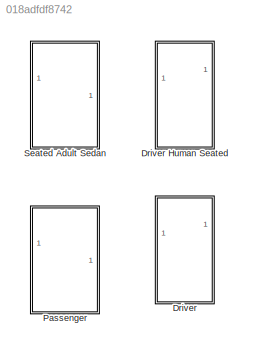
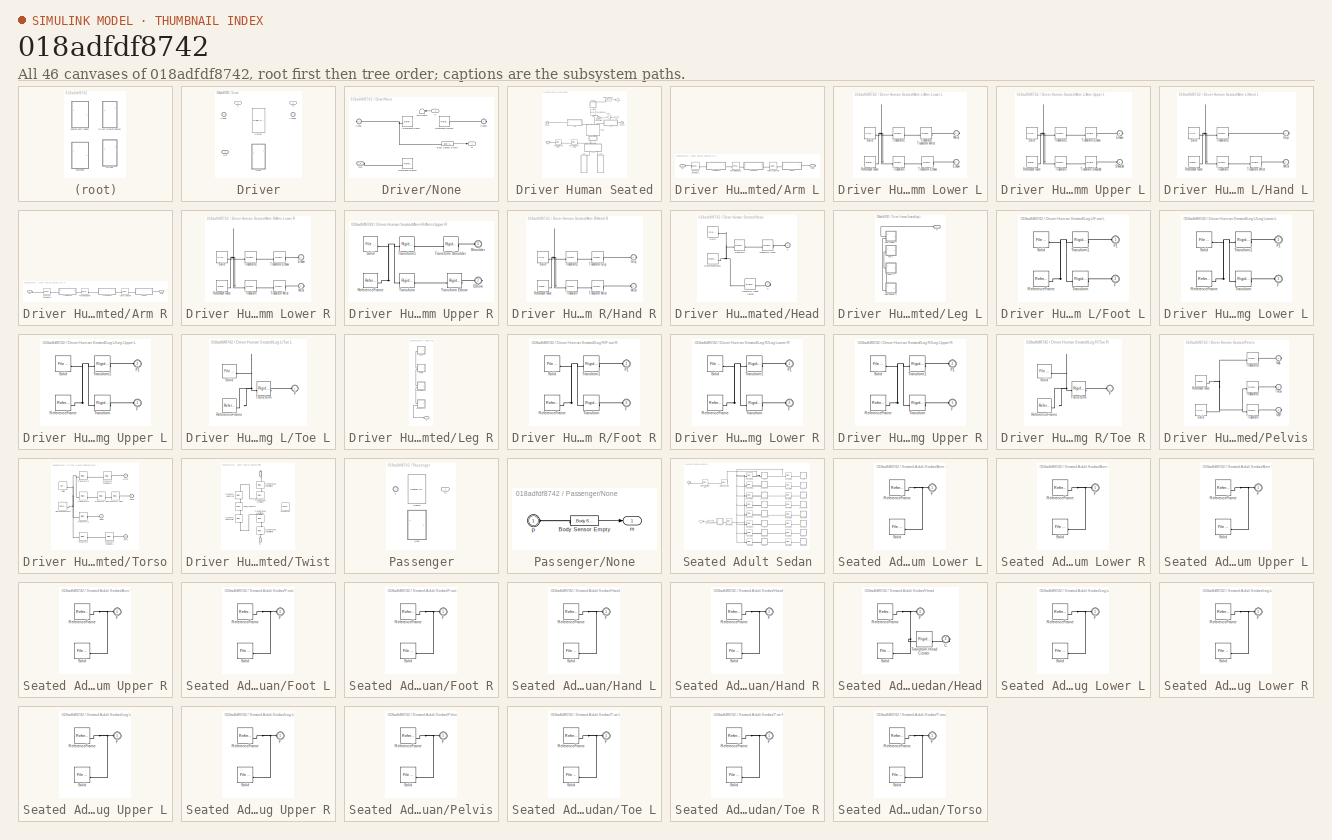
[diagram: thumbnail index - all 46 canvases of the model, root first then tree order]
MODEL slx_018adfdf8742
KIND library
CONFIG AbsTol = auto
CONFIG EnableMultiTasking = off
CONFIG FixedStep = auto
CONFIG MaxStep = auto
CONFIG MinStep = auto
CONFIG RelTol = 1e-3
CONFIG SampleTimeConstraint = Unconstrained
CONFIG SolverName = VariableStepAuto
CONFIG StartTime = 0.0
CONFIG StopTime = 25
BLOCK [SubSystem] Driver
  AttributesFormatString = %<LabelModeActiveChoice>
  Variant = on
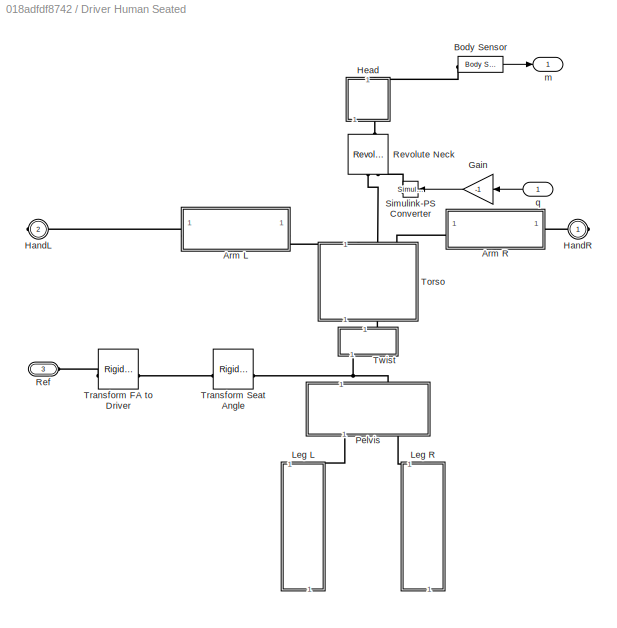
BLOCK [SubSystem] Driver Human Seated
  VariantControl = Human
BLOCK [SubSystem] Driver Human Seated/Arm L
BLOCK [SubSystem] Driver Human Seated/Arm L/Arm Lower L
BLOCK [PMIOPort] Driver Human Seated/Arm L/Arm Lower L/Elbow
  Side = Left
BLOCK [Reference] Driver Human Seated/Arm L/Arm Lower L/ReferenceFrame  REF=sm_lib/Frames and
Transforms/Reference
Frame
  SourceBlock = sm_lib/Frames and\nTransforms/Reference\nFrame
  SourceType = Reference\nFrame
BLOCK [Reference] Driver Human Seated/Arm L/Arm Lower L/Solid  REF=sm_lib/Body Elements/File Solid
  SourceBlock = sm_lib/Body Elements/File Solid
  SourceType = File Solid
BLOCK [Reference] Driver Human Seated/Arm L/Arm Lower L/Transform  REF=sm_lib/Frames and
Transforms/Rigid
Transform
  SourceBlock = sm_lib/Frames and\nTransforms/Rigid\nTransform
  SourceType = Rigid\nTransform
BLOCK [Reference] Driver Human Seated/Arm L/Arm Lower L/Transform Elbow  REF=sm_lib/Frames and
Transforms/Rigid
Transform
  SourceBlock = sm_lib/Frames and\nTransforms/Rigid\nTransform
  SourceType = Rigid\nTransform
BLOCK [Reference] Driver Human Seated/Arm L/Arm Lower L/Transform Transform Wrist  REF=sm_lib/Frames and
Transforms/Rigid
Transform
  SourceBlock = sm_lib/Frames and\nTransforms/Rigid\nTransform
  SourceType = Rigid\nTransform
BLOCK [Reference] Driver Human Seated/Arm L/Arm Lower L/Transform1  REF=sm_lib/Frames and
Transforms/Rigid
Transform
  SourceBlock = sm_lib/Frames and\nTransforms/Rigid\nTransform
  SourceType = Rigid\nTransform
BLOCK [PMIOPort] Driver Human Seated/Arm L/Arm Lower L/Wrist
  Port = 2
  Side = Right
BLOCK [SubSystem] Driver Human Seated/Arm L/Arm Upper L
BLOCK [PMIOPort] Driver Human Seated/Arm L/Arm Upper L/Elbow
  Port = 2
  Side = Right
BLOCK [Reference] Driver Human Seated/Arm L/Arm Upper L/ReferenceFrame  REF=sm_lib/Frames and
Transforms/Reference
Frame
  SourceBlock = sm_lib/Frames and\nTransforms/Reference\nFrame
  SourceType = Reference\nFrame
BLOCK [PMIOPort] Driver Human Seated/Arm L/Arm Upper L/Shoulder
  Side = Left
BLOCK [Reference] Driver Human Seated/Arm L/Arm Upper L/Solid  REF=sm_lib/Body Elements/File Solid
  SourceBlock = sm_lib/Body Elements/File Solid
  SourceType = File Solid
BLOCK [Reference] Driver Human Seated/Arm L/Arm Upper L/Transform  REF=sm_lib/Frames and
Transforms/Rigid
Transform
  SourceBlock = sm_lib/Frames and\nTransforms/Rigid\nTransform
  SourceType = Rigid\nTransform
BLOCK [Reference] Driver Human Seated/Arm L/Arm Upper L/Transform Elbow  REF=sm_lib/Frames and
Transforms/Rigid
Transform
  SourceBlock = sm_lib/Frames and\nTransforms/Rigid\nTransform
  SourceType = Rigid\nTransform
BLOCK [Reference] Driver Human Seated/Arm L/Arm Upper L/Transform Shoulder  REF=sm_lib/Frames and
Transforms/Rigid
Transform
  SourceBlock = sm_lib/Frames and\nTransforms/Rigid\nTransform
  SourceType = Rigid\nTransform
BLOCK [Reference] Driver Human Seated/Arm L/Arm Upper L/Transform1  REF=sm_lib/Frames and
Transforms/Rigid
Transform
  SourceBlock = sm_lib/Frames and\nTransforms/Rigid\nTransform
  SourceType = Rigid\nTransform
BLOCK [PMIOPort] Driver Human Seated/Arm L/Grip
  Port = 2
  Side = Right
BLOCK [SubSystem] Driver Human Seated/Arm L/Hand L
BLOCK [PMIOPort] Driver Human Seated/Arm L/Hand L/Grip
  Side = Right
BLOCK [Reference] Driver Human Seated/Arm L/Hand L/ReferenceFrame  REF=sm_lib/Frames and
Transforms/Reference
Frame
  SourceBlock = sm_lib/Frames and\nTransforms/Reference\nFrame
  SourceType = Reference\nFrame
BLOCK [Reference] Driver Human Seated/Arm L/Hand L/Solid  REF=sm_lib/Body Elements/File Solid
  SourceBlock = sm_lib/Body Elements/File Solid
  SourceType = File Solid
BLOCK [Reference] Driver Human Seated/Arm L/Hand L/Transform  REF=sm_lib/Frames and
Transforms/Rigid
Transform
  SourceBlock = sm_lib/Frames and\nTransforms/Rigid\nTransform
  SourceType = Rigid\nTransform
BLOCK [Reference] Driver Human Seated/Arm L/Hand L/Transform Wrist  REF=sm_lib/Frames and
Transforms/Rigid
Transform
  SourceBlock = sm_lib/Frames and\nTransforms/Rigid\nTransform
  SourceType = Rigid\nTransform
BLOCK [Reference] Driver Human Seated/Arm L/Hand L/Transform1  REF=sm_lib/Frames and
Transforms/Rigid
Transform
  SourceBlock = sm_lib/Frames and\nTransforms/Rigid\nTransform
  SourceType = Rigid\nTransform
BLOCK [PMIOPort] Driver Human Seated/Arm L/Hand L/Wrist
  Port = 2
  Side = Left
BLOCK [Reference] Driver Human Seated/Arm L/Revolute ElbowL  REF=sm_lib/Joints/Revolute Joint
  SourceBlock = sm_lib/Joints/Revolute Joint
  SourceType = Revolute Joint
BLOCK [PMIOPort] Driver Human Seated/Arm L/Sh
  Side = Left
BLOCK [Reference] Driver Human Seated/Arm L/Spherical ShoulderL  REF=sm_lib/Joints/Spherical
Joint
  SourceBlock = sm_lib/Joints/Spherical\nJoint
  SourceType = Spherical\nJoint
BLOCK [Reference] Driver Human Seated/Arm L/Universal WristL  REF=sm_lib/Joints/Universal
Joint
  SourceBlock = sm_lib/Joints/Universal\nJoint
  SourceType = Universal\nJoint
BLOCK [SubSystem] Driver Human Seated/Arm R
BLOCK [SubSystem] Driver Human Seated/Arm R/Arm Lower R
BLOCK [PMIOPort] Driver Human Seated/Arm R/Arm Lower R/Elbow
  Side = Left
BLOCK [Reference] Driver Human Seated/Arm R/Arm Lower R/ReferenceFrame  REF=sm_lib/Frames and
Transforms/Reference
Frame
  SourceBlock = sm_lib/Frames and\nTransforms/Reference\nFrame
  SourceType = Reference\nFrame
BLOCK [Reference] Driver Human Seated/Arm R/Arm Lower R/Solid  REF=sm_lib/Body Elements/File Solid
  SourceBlock = sm_lib/Body Elements/File Solid
  SourceType = File Solid
BLOCK [Reference] Driver Human Seated/Arm R/Arm Lower R/Transform  REF=sm_lib/Frames and
Transforms/Rigid
Transform
  SourceBlock = sm_lib/Frames and\nTransforms/Rigid\nTransform
  SourceType = Rigid\nTransform
BLOCK [Reference] Driver Human Seated/Arm R/Arm Lower R/Transform Elbow  REF=sm_lib/Frames and
Transforms/Rigid
Transform
  SourceBlock = sm_lib/Frames and\nTransforms/Rigid\nTransform
  SourceType = Rigid\nTransform
BLOCK [Reference] Driver Human Seated/Arm R/Arm Lower R/Transform Wrist  REF=sm_lib/Frames and
Transforms/Rigid
Transform
  SourceBlock = sm_lib/Frames and\nTransforms/Rigid\nTransform
  SourceType = Rigid\nTransform
BLOCK [Reference] Driver Human Seated/Arm R/Arm Lower R/Transform1  REF=sm_lib/Frames and
Transforms/Rigid
Transform
  SourceBlock = sm_lib/Frames and\nTransforms/Rigid\nTransform
  SourceType = Rigid\nTransform
BLOCK [PMIOPort] Driver Human Seated/Arm R/Arm Lower R/Wrist
  Port = 2
  Side = Right
BLOCK [SubSystem] Driver Human Seated/Arm R/Arm Upper R
BLOCK [PMIOPort] Driver Human Seated/Arm R/Arm Upper R/Elbow
  Port = 2
  Side = Right
BLOCK [Reference] Driver Human Seated/Arm R/Arm Upper R/ReferenceFrame  REF=sm_lib/Frames and
Transforms/Reference
Frame
  SourceBlock = sm_lib/Frames and\nTransforms/Reference\nFrame
  SourceType = Reference\nFrame
BLOCK [PMIOPort] Driver Human Seated/Arm R/Arm Upper R/Shoulder
  Side = Left
BLOCK [Reference] Driver Human Seated/Arm R/Arm Upper R/Solid  REF=sm_lib/Body Elements/File Solid
  SourceBlock = sm_lib/Body Elements/File Solid
  SourceType = File Solid
BLOCK [Reference] Driver Human Seated/Arm R/Arm Upper R/Transform  REF=sm_lib/Frames and
Transforms/Rigid
Transform
  SourceBlock = sm_lib/Frames and\nTransforms/Rigid\nTransform
  SourceType = Rigid\nTransform
BLOCK [Reference] Driver Human Seated/Arm R/Arm Upper R/Transform Elbow  REF=sm_lib/Frames and
Transforms/Rigid
Transform
  SourceBlock = sm_lib/Frames and\nTransforms/Rigid\nTransform
  SourceType = Rigid\nTransform
BLOCK [Reference] Driver Human Seated/Arm R/Arm Upper R/Transform Shoulder  REF=sm_lib/Frames and
Transforms/Rigid
Transform
  SourceBlock = sm_lib/Frames and\nTransforms/Rigid\nTransform
  SourceType = Rigid\nTransform
BLOCK [Reference] Driver Human Seated/Arm R/Arm Upper R/Transform1  REF=sm_lib/Frames and
Transforms/Rigid
Transform
  SourceBlock = sm_lib/Frames and\nTransforms/Rigid\nTransform
  SourceType = Rigid\nTransform
BLOCK [PMIOPort] Driver Human Seated/Arm R/Grip
  Side = Right
BLOCK [SubSystem] Driver Human Seated/Arm R/Hand R
BLOCK [PMIOPort] Driver Human Seated/Arm R/Hand R/Grip
  Side = Right
BLOCK [Reference] Driver Human Seated/Arm R/Hand R/ReferenceFrame  REF=sm_lib/Frames and
Transforms/Reference
Frame
  SourceBlock = sm_lib/Frames and\nTransforms/Reference\nFrame
  SourceType = Reference\nFrame
BLOCK [Reference] Driver Human Seated/Arm R/Hand R/Solid  REF=sm_lib/Body Elements/File Solid
  SourceBlock = sm_lib/Body Elements/File Solid
  SourceType = File Solid
BLOCK [Reference] Driver Human Seated/Arm R/Hand R/Transform  REF=sm_lib/Frames and
Transforms/Rigid
Transform
  SourceBlock = sm_lib/Frames and\nTransforms/Rigid\nTransform
  SourceType = Rigid\nTransform
BLOCK [Reference] Driver Human Seated/Arm R/Hand R/Transform Grip  REF=sm_lib/Frames and
Transforms/Rigid
Transform
  SourceBlock = sm_lib/Frames and\nTransforms/Rigid\nTransform
  SourceType = Rigid\nTransform
BLOCK [Reference] Driver Human Seated/Arm R/Hand R/Transform Wrist  REF=sm_lib/Frames and
Transforms/Rigid
Transform
  SourceBlock = sm_lib/Frames and\nTransforms/Rigid\nTransform
  SourceType = Rigid\nTransform
BLOCK [Reference] Driver Human Seated/Arm R/Hand R/Transform1  REF=sm_lib/Frames and
Transforms/Rigid
Transform
  SourceBlock = sm_lib/Frames and\nTransforms/Rigid\nTransform
  SourceType = Rigid\nTransform
BLOCK [PMIOPort] Driver Human Seated/Arm R/Hand R/Wrist
  Port = 2
  Side = Left
BLOCK [Reference] Driver Human Seated/Arm R/Revolute ElbowR  REF=sm_lib/Joints/Revolute Joint
  SourceBlock = sm_lib/Joints/Revolute Joint
  SourceType = Revolute Joint
BLOCK [PMIOPort] Driver Human Seated/Arm R/Sh
  Port = 2
  Side = Left
BLOCK [Reference] Driver Human Seated/Arm R/Spherical ShoulderR  REF=sm_lib/Joints/Spherical
Joint
  SourceBlock = sm_lib/Joints/Spherical\nJoint
  SourceType = Spherical\nJoint
BLOCK [Reference] Driver Human Seated/Arm R/Universal WristR  REF=sm_lib/Joints/Universal
Joint
  SourceBlock = sm_lib/Joints/Universal\nJoint
  SourceType = Universal\nJoint
BLOCK [Reference] Driver Human Seated/Body Sensor  REF=sm_car_lib/Sensors/Body Sensor  (lib defined in slx_05426f0848b6, slx_5dc2867fb1c9)
  SourceBlock = sm_car_lib/Sensors/Body Sensor
BLOCK [Gain] Driver Human Seated/Gain
  Gain = -1
BLOCK [PMIOPort] Driver Human Seated/HandL
  Port = 2
  Side = Right
BLOCK [PMIOPort] Driver Human Seated/HandR
  Side = Right
BLOCK [SubSystem] Driver Human Seated/Head
  NameLocation = right
BLOCK [PMIOPort] Driver Human Seated/Head/C
  Port = 2
  Side = Right
BLOCK [PMIOPort] Driver Human Seated/Head/F
  Side = Left
BLOCK [Reference] Driver Human Seated/Head/ReferenceFrame  REF=sm_lib/Frames and
Transforms/Reference
Frame
  SourceBlock = sm_lib/Frames and\nTransforms/Reference\nFrame
  SourceType = Reference\nFrame
BLOCK [Reference] Driver Human Seated/Head/Solid  REF=sm_lib/Body Elements/File Solid
  SourceBlock = sm_lib/Body Elements/File Solid
  SourceType = File Solid
BLOCK [Reference] Driver Human Seated/Head/Transform  REF=sm_lib/Frames and
Transforms/Rigid
Transform
  SourceBlock = sm_lib/Frames and\nTransforms/Rigid\nTransform
  SourceType = Rigid\nTransform
BLOCK [Reference] Driver Human Seated/Head/Transform Head Center  REF=sm_lib/Frames and
Transforms/Rigid
Transform
  SourceBlock = sm_lib/Frames and\nTransforms/Rigid\nTransform
  SourceType = Rigid\nTransform
BLOCK [Reference] Driver Human Seated/Head/Transform Neck  REF=sm_lib/Frames and
Transforms/Rigid
Transform
  SourceBlock = sm_lib/Frames and\nTransforms/Rigid\nTransform
  SourceType = Rigid\nTransform
BLOCK [SubSystem] Driver Human Seated/Leg L
  NameLocation = left
BLOCK [SubSystem] Driver Human Seated/Leg L/Foot L
BLOCK [PMIOPort] Driver Human Seated/Leg L/Foot L/F
  Port = 2
  Side = Left
BLOCK [PMIOPort] Driver Human Seated/Leg L/Foot L/F1
  Side = Left
BLOCK [Reference] Driver Human Seated/Leg L/Foot L/ReferenceFrame  REF=sm_lib/Frames and
Transforms/Reference
Frame
  SourceBlock = sm_lib/Frames and\nTransforms/Reference\nFrame
  SourceType = Reference\nFrame
BLOCK [Reference] Driver Human Seated/Leg L/Foot L/Solid  REF=sm_lib/Body Elements/File Solid
  SourceBlock = sm_lib/Body Elements/File Solid
  SourceType = File Solid
BLOCK [Reference] Driver Human Seated/Leg L/Foot L/Transform  REF=sm_lib/Frames and
Transforms/Rigid
Transform
  SourceBlock = sm_lib/Frames and\nTransforms/Rigid\nTransform
  SourceType = Rigid\nTransform
BLOCK [Reference] Driver Human Seated/Leg L/Foot L/Transform1  REF=sm_lib/Frames and
Transforms/Rigid
Transform
  SourceBlock = sm_lib/Frames and\nTransforms/Rigid\nTransform
  SourceType = Rigid\nTransform
BLOCK [SubSystem] Driver Human Seated/Leg L/Leg Lower L
BLOCK [PMIOPort] Driver Human Seated/Leg L/Leg Lower L/F
  Side = Left
BLOCK [PMIOPort] Driver Human Seated/Leg L/Leg Lower L/F1
  Port = 2
  Side = Left
BLOCK [Reference] Driver Human Seated/Leg L/Leg Lower L/ReferenceFrame  REF=sm_lib/Frames and
Transforms/Reference
Frame
  SourceBlock = sm_lib/Frames and\nTransforms/Reference\nFrame
  SourceType = Reference\nFrame
BLOCK [Reference] Driver Human Seated/Leg L/Leg Lower L/Solid  REF=sm_lib/Body Elements/File Solid
  SourceBlock = sm_lib/Body Elements/File Solid
  SourceType = File Solid
BLOCK [Reference] Driver Human Seated/Leg L/Leg Lower L/Transform  REF=sm_lib/Frames and
Transforms/Rigid
Transform
  SourceBlock = sm_lib/Frames and\nTransforms/Rigid\nTransform
  SourceType = Rigid\nTransform
BLOCK [Reference] Driver Human Seated/Leg L/Leg Lower L/Transform1  REF=sm_lib/Frames and
Transforms/Rigid
Transform
  SourceBlock = sm_lib/Frames and\nTransforms/Rigid\nTransform
  SourceType = Rigid\nTransform
BLOCK [SubSystem] Driver Human Seated/Leg L/Leg Upper L
BLOCK [PMIOPort] Driver Human Seated/Leg L/Leg Upper L/F
  Side = Left
BLOCK [PMIOPort] Driver Human Seated/Leg L/Leg Upper L/F1
  Port = 2
  Side = Left
BLOCK [Reference] Driver Human Seated/Leg L/Leg Upper L/ReferenceFrame  REF=sm_lib/Frames and
Transforms/Reference
Frame
  SourceBlock = sm_lib/Frames and\nTransforms/Reference\nFrame
  SourceType = Reference\nFrame
BLOCK [Reference] Driver Human Seated/Leg L/Leg Upper L/Solid  REF=sm_lib/Body Elements/File Solid
  SourceBlock = sm_lib/Body Elements/File Solid
  SourceType = File Solid
BLOCK [Reference] Driver Human Seated/Leg L/Leg Upper L/Transform  REF=sm_lib/Frames and
Transforms/Rigid
Transform
  SourceBlock = sm_lib/Frames and\nTransforms/Rigid\nTransform
  SourceType = Rigid\nTransform
BLOCK [Reference] Driver Human Seated/Leg L/Leg Upper L/Transform1  REF=sm_lib/Frames and
Transforms/Rigid
Transform
  SourceBlock = sm_lib/Frames and\nTransforms/Rigid\nTransform
  SourceType = Rigid\nTransform
BLOCK [PMIOPort] Driver Human Seated/Leg L/P
  Side = Left
BLOCK [SubSystem] Driver Human Seated/Leg L/Toe L
BLOCK [PMIOPort] Driver Human Seated/Leg L/Toe L/F
  Side = Left
BLOCK [Reference] Driver Human Seated/Leg L/Toe L/ReferenceFrame  REF=sm_lib/Frames and
Transforms/Reference
Frame
  SourceBlock = sm_lib/Frames and\nTransforms/Reference\nFrame
  SourceType = Reference\nFrame
BLOCK [Reference] Driver Human Seated/Leg L/Toe L/Solid  REF=sm_lib/Body Elements/File Solid
  SourceBlock = sm_lib/Body Elements/File Solid
  SourceType = File Solid
BLOCK [Reference] Driver Human Seated/Leg L/Toe L/Transform  REF=sm_lib/Frames and
Transforms/Rigid
Transform
  SourceBlock = sm_lib/Frames and\nTransforms/Rigid\nTransform
  SourceType = Rigid\nTransform
BLOCK [SubSystem] Driver Human Seated/Leg R
  NameLocation = right
BLOCK [SubSystem] Driver Human Seated/Leg R/Foot R
BLOCK [PMIOPort] Driver Human Seated/Leg R/Foot R/F
  Port = 2
  Side = Left
BLOCK [PMIOPort] Driver Human Seated/Leg R/Foot R/F1
  Side = Left
BLOCK [Reference] Driver Human Seated/Leg R/Foot R/ReferenceFrame  REF=sm_lib/Frames and
Transforms/Reference
Frame
  SourceBlock = sm_lib/Frames and\nTransforms/Reference\nFrame
  SourceType = Reference\nFrame
BLOCK [Reference] Driver Human Seated/Leg R/Foot R/Solid  REF=sm_lib/Body Elements/File Solid
  SourceBlock = sm_lib/Body Elements/File Solid
  SourceType = File Solid
BLOCK [Reference] Driver Human Seated/Leg R/Foot R/Transform  REF=sm_lib/Frames and
Transforms/Rigid
Transform
  SourceBlock = sm_lib/Frames and\nTransforms/Rigid\nTransform
  SourceType = Rigid\nTransform
BLOCK [Reference] Driver Human Seated/Leg R/Foot R/Transform1  REF=sm_lib/Frames and
Transforms/Rigid
Transform
  SourceBlock = sm_lib/Frames and\nTransforms/Rigid\nTransform
  SourceType = Rigid\nTransform
BLOCK [SubSystem] Driver Human Seated/Leg R/Leg Lower R
BLOCK [PMIOPort] Driver Human Seated/Leg R/Leg Lower R/F
  Port = 2
  Side = Left
BLOCK [PMIOPort] Driver Human Seated/Leg R/Leg Lower R/F1
  Side = Left
BLOCK [Reference] Driver Human Seated/Leg R/Leg Lower R/ReferenceFrame  REF=sm_lib/Frames and
Transforms/Reference
Frame
  SourceBlock = sm_lib/Frames and\nTransforms/Reference\nFrame
  SourceType = Reference\nFrame
BLOCK [Reference] Driver Human Seated/Leg R/Leg Lower R/Solid  REF=sm_lib/Body Elements/File Solid
  SourceBlock = sm_lib/Body Elements/File Solid
  SourceType = File Solid
BLOCK [Reference] Driver Human Seated/Leg R/Leg Lower R/Transform  REF=sm_lib/Frames and
Transforms/Rigid
Transform
  SourceBlock = sm_lib/Frames and\nTransforms/Rigid\nTransform
  SourceType = Rigid\nTransform
BLOCK [Reference] Driver Human Seated/Leg R/Leg Lower R/Transform1  REF=sm_lib/Frames and
Transforms/Rigid
Transform
  SourceBlock = sm_lib/Frames and\nTransforms/Rigid\nTransform
  SourceType = Rigid\nTransform
BLOCK [SubSystem] Driver Human Seated/Leg R/Leg Upper R
BLOCK [PMIOPort] Driver Human Seated/Leg R/Leg Upper R/F
  Side = Left
BLOCK [PMIOPort] Driver Human Seated/Leg R/Leg Upper R/F1
  Port = 2
  Side = Left
BLOCK [Reference] Driver Human Seated/Leg R/Leg Upper R/ReferenceFrame  REF=sm_lib/Frames and
Transforms/Reference
Frame
  SourceBlock = sm_lib/Frames and\nTransforms/Reference\nFrame
  SourceType = Reference\nFrame
BLOCK [Reference] Driver Human Seated/Leg R/Leg Upper R/Solid  REF=sm_lib/Body Elements/File Solid
  SourceBlock = sm_lib/Body Elements/File Solid
  SourceType = File Solid
BLOCK [Reference] Driver Human Seated/Leg R/Leg Upper R/Transform  REF=sm_lib/Frames and
Transforms/Rigid
Transform
  SourceBlock = sm_lib/Frames and\nTransforms/Rigid\nTransform
  SourceType = Rigid\nTransform
BLOCK [Reference] Driver Human Seated/Leg R/Leg Upper R/Transform1  REF=sm_lib/Frames and
Transforms/Rigid
Transform
  SourceBlock = sm_lib/Frames and\nTransforms/Rigid\nTransform
  SourceType = Rigid\nTransform
BLOCK [PMIOPort] Driver Human Seated/Leg R/P
  Side = Left
BLOCK [SubSystem] Driver Human Seated/Leg R/Toe R
BLOCK [PMIOPort] Driver Human Seated/Leg R/Toe R/F
  Side = Left
BLOCK [Reference] Driver Human Seated/Leg R/Toe R/ReferenceFrame  REF=sm_lib/Frames and
Transforms/Reference
Frame
  SourceBlock = sm_lib/Frames and\nTransforms/Reference\nFrame
  SourceType = Reference\nFrame
BLOCK [Reference] Driver Human Seated/Leg R/Toe R/Solid  REF=sm_lib/Body Elements/File Solid
  SourceBlock = sm_lib/Body Elements/File Solid
  SourceType = File Solid
BLOCK [Reference] Driver Human Seated/Leg R/Toe R/Transform  REF=sm_lib/Frames and
Transforms/Rigid
Transform
  SourceBlock = sm_lib/Frames and\nTransforms/Rigid\nTransform
  SourceType = Rigid\nTransform
BLOCK [SubSystem] Driver Human Seated/Pelvis
  NameLocation = left
BLOCK [PMIOPort] Driver Human Seated/Pelvis/LegL
  Port = 2
  Side = Right
BLOCK [PMIOPort] Driver Human Seated/Pelvis/LegR
  Port = 3
  Side = Right
BLOCK [Reference] Driver Human Seated/Pelvis/ReferenceFrame  REF=sm_lib/Frames and
Transforms/Reference
Frame
  SourceBlock = sm_lib/Frames and\nTransforms/Reference\nFrame
  SourceType = Reference\nFrame
BLOCK [Reference] Driver Human Seated/Pelvis/Solid  REF=sm_lib/Body Elements/File Solid
  SourceBlock = sm_lib/Body Elements/File Solid
  SourceType = File Solid
BLOCK [PMIOPort] Driver Human Seated/Pelvis/Torso
  Side = Left
BLOCK [Reference] Driver Human Seated/Pelvis/Transform  REF=sm_lib/Frames and
Transforms/Rigid
Transform
  SourceBlock = sm_lib/Frames and\nTransforms/Rigid\nTransform
  SourceType = Rigid\nTransform
BLOCK [Reference] Driver Human Seated/Pelvis/Transform2  REF=sm_lib/Frames and
Transforms/Rigid
Transform
  SourceBlock = sm_lib/Frames and\nTransforms/Rigid\nTransform
  SourceType = Rigid\nTransform
BLOCK [Reference] Driver Human Seated/Pelvis/Transform3  REF=sm_lib/Frames and
Transforms/Rigid
Transform
  SourceBlock = sm_lib/Frames and\nTransforms/Rigid\nTransform
  SourceType = Rigid\nTransform
BLOCK [PMIOPort] Driver Human Seated/Ref
  Port = 3
  Side = Left
BLOCK [Reference] Driver Human Seated/Revolute Neck  REF=sm_lib/Joints/Revolute Joint
  NameLocation = right
  SourceBlock = sm_lib/Joints/Revolute Joint
  SourceType = Revolute Joint
BLOCK [Reference] Driver Human Seated/Simulink-PS Converter  REF=nesl_utility/Simulink-PS
Converter
  SourceBlock = nesl_utility/Simulink-PS\nConverter
  SourceType = Simulink-PS\nConverter
BLOCK [SubSystem] Driver Human Seated/Torso
  NameLocation = right
BLOCK [PMIOPort] Driver Human Seated/Torso/ArmL
  Port = 2
  Side = Right
BLOCK [PMIOPort] Driver Human Seated/Torso/ArmR
  Port = 4
  Side = Right
BLOCK [PMIOPort] Driver Human Seated/Torso/Head
  Port = 3
  Side = Right
BLOCK [PMIOPort] Driver Human Seated/Torso/Pelvis
  Side = Left
BLOCK [Reference] Driver Human Seated/Torso/ReferenceFrame  REF=sm_lib/Frames and
Transforms/Reference
Frame
  SourceBlock = sm_lib/Frames and\nTransforms/Reference\nFrame
  SourceType = Reference\nFrame
BLOCK [Reference] Driver Human Seated/Torso/Solid  REF=sm_lib/Body Elements/File Solid
  SourceBlock = sm_lib/Body Elements/File Solid
  SourceType = File Solid
BLOCK [Reference] Driver Human Seated/Torso/Transform  REF=sm_lib/Frames and
Transforms/Rigid
Transform
  SourceBlock = sm_lib/Frames and\nTransforms/Rigid\nTransform
  SourceType = Rigid\nTransform
BLOCK [Reference] Driver Human Seated/Torso/Transform Neck  REF=sm_lib/Frames and
Transforms/Rigid
Transform
  SourceBlock = sm_lib/Frames and\nTransforms/Rigid\nTransform
  SourceType = Rigid\nTransform
BLOCK [Reference] Driver Human Seated/Torso/Transform Nod  REF=sm_lib/Frames and
Transforms/Rigid
Transform
  SourceBlock = sm_lib/Frames and\nTransforms/Rigid\nTransform
  SourceType = Rigid\nTransform
BLOCK [Reference] Driver Human Seated/Torso/Transform ShoulderL  REF=sm_lib/Frames and
Transforms/Rigid
Transform
  SourceBlock = sm_lib/Frames and\nTransforms/Rigid\nTransform
  SourceType = Rigid\nTransform
BLOCK [Reference] Driver Human Seated/Torso/Transform ShoulderR  REF=sm_lib/Frames and
Transforms/Rigid
Transform
  SourceBlock = sm_lib/Frames and\nTransforms/Rigid\nTransform
  SourceType = Rigid\nTransform
BLOCK [Reference] Driver Human Seated/Torso/Transform1  REF=sm_lib/Frames and
Transforms/Rigid
Transform
  SourceBlock = sm_lib/Frames and\nTransforms/Rigid\nTransform
  SourceType = Rigid\nTransform
BLOCK [Reference] Driver Human Seated/Torso/Transform2  REF=sm_lib/Frames and
Transforms/Rigid
Transform
  SourceBlock = sm_lib/Frames and\nTransforms/Rigid\nTransform
  SourceType = Rigid\nTransform
BLOCK [Reference] Driver Human Seated/Torso/Transform3  REF=sm_lib/Frames and
Transforms/Rigid
Transform
  SourceBlock = sm_lib/Frames and\nTransforms/Rigid\nTransform
  SourceType = Rigid\nTransform
BLOCK [Reference] Driver Human Seated/Transform FA to Driver  REF=sm_lib/Frames and
Transforms/Rigid
Transform
  SourceBlock = sm_lib/Frames and\nTransforms/Rigid\nTransform
  SourceType = Rigid\nTransform
BLOCK [Reference] Driver Human Seated/Transform Seat Angle  REF=sm_lib/Frames and
Transforms/Rigid
Transform
  SourceBlock = sm_lib/Frames and\nTransforms/Rigid\nTransform
  SourceType = Rigid\nTransform
BLOCK [SubSystem] Driver Human Seated/Twist
  NameLocation = right
BLOCK [PMIOPort] Driver Human Seated/Twist/B
  NameLocation = right
  Port = 2
  Side = Left
BLOCK [Reference] Driver Human Seated/Twist/Revolute Joint  REF=sm_lib/Joints/Revolute Joint
  Commented = on
  NameLocation = right
  SourceBlock = sm_lib/Joints/Revolute Joint
  SourceType = Revolute Joint
BLOCK [PMIOPort] Driver Human Seated/Twist/T
  NameLocation = left
  Side = Right
BLOCK [Reference] Driver Human Seated/Twist/Transform Axis Location B  REF=sm_lib/Frames and
Transforms/Rigid
Transform
  NameLocation = right
  SourceBlock = sm_lib/Frames and\nTransforms/Rigid\nTransform
  SourceType = Rigid\nTransform
BLOCK [Reference] Driver Human Seated/Twist/Transform Axis Location F  REF=sm_lib/Frames and
Transforms/Rigid
Transform
  NameLocation = right
  SourceBlock = sm_lib/Frames and\nTransforms/Rigid\nTransform
  SourceType = Rigid\nTransform
BLOCK [Reference] Driver Human Seated/Twist/Transform Axis Orientation B  REF=sm_lib/Frames and
Transforms/Rigid
Transform
  NameLocation = right
  SourceBlock = sm_lib/Frames and\nTransforms/Rigid\nTransform
  SourceType = Rigid\nTransform
BLOCK [Reference] Driver Human Seated/Twist/Transform Axis Orientation F  REF=sm_lib/Frames and
Transforms/Rigid
Transform
  NameLocation = right
  SourceBlock = sm_lib/Frames and\nTransforms/Rigid\nTransform
  SourceType = Rigid\nTransform
BLOCK [Reference] Driver Human Seated/Twist/Transform Universal B  REF=sm_lib/Frames and
Transforms/Rigid
Transform
  NameLocation = left
  SourceBlock = sm_lib/Frames and\nTransforms/Rigid\nTransform
  SourceType = Rigid\nTransform
BLOCK [Reference] Driver Human Seated/Twist/Transform Universal F  REF=sm_lib/Frames and
Transforms/Rigid
Transform
  NameLocation = left
  SourceBlock = sm_lib/Frames and\nTransforms/Rigid\nTransform
  SourceType = Rigid\nTransform
BLOCK [Reference] Driver Human Seated/Twist/Universal Torso  REF=sm_lib/Joints/Universal
Joint
  NameLocation = left
  SourceBlock = sm_lib/Joints/Universal\nJoint
  SourceType = Universal\nJoint
BLOCK [Outport] Driver Human Seated/m
  VectorParamsAs1DForOutWhenUnconnected = off
BLOCK [Inport] Driver Human Seated/q
  NameLocation = top
BLOCK [PMIOPort] Driver/HandL
  Port = 2
  Side = Right
BLOCK [PMIOPort] Driver/HandR
  Side = Right
BLOCK [Reference] Driver/Human  REF=$bdroot/Driver Human Seated
  SourceBlock = $bdroot/Driver Human Seated
BLOCK [SubSystem] Driver/None
  VariantControl = None
BLOCK [Reference] Driver/None/Body Sensor Empty  REF=sm_car_lib/Sensors/Body Sensor Empty  (lib defined in slx_05426f0848b6, slx_5dc2867fb1c9)
  SourceBlock = sm_car_lib/Sensors/Body Sensor Empty
BLOCK [PMIOPort] Driver/None/HandL
  Port = 2
  Side = Right
BLOCK [PMIOPort] Driver/None/HandR
  Side = Right
BLOCK [PMIOPort] Driver/None/Ref
  Port = 3
  Side = Left
BLOCK [Reference] Driver/None/Reference Frame  REF=sm_lib/Frames and
Transforms/Reference
Frame
  NameLocation = top
  SourceBlock = sm_lib/Frames and\nTransforms/Reference\nFrame
  SourceType = Reference\nFrame
BLOCK [Reference] Driver/None/Reference Frame1  REF=sm_lib/Frames and
Transforms/Reference
Frame
  NameLocation = top
  SourceBlock = sm_lib/Frames and\nTransforms/Reference\nFrame
  SourceType = Reference\nFrame
BLOCK [Reference] Driver/None/Reference Frame2  REF=sm_lib/Frames and
Transforms/Reference
Frame
  NameLocation = top
  SourceBlock = sm_lib/Frames and\nTransforms/Reference\nFrame
  SourceType = Reference\nFrame
BLOCK [Terminator] Driver/None/Terminator
  NameLocation = top
BLOCK [Outport] Driver/None/m
  VectorParamsAs1DForOutWhenUnconnected = off
BLOCK [Inport] Driver/None/q
  NameLocation = top
BLOCK [PMIOPort] Driver/Ref
  Port = 3
  Side = Left
BLOCK [Outport] Driver/m
  VectorParamsAs1DForOutWhenUnconnected = off
BLOCK [Inport] Driver/q
  NameLocation = top
BLOCK [SubSystem] Passenger
  AttributesFormatString = %<LabelModeActiveChoice>
  LabelModeActiveChoice = Human
  Variant = on
  VariantControlMode = label
BLOCK [Reference] Passenger/Human  REF=$bdroot/Seated
Adult
Sedan
  SourceBlock = $bdroot/Seated\nAdult\nSedan
BLOCK [SubSystem] Passenger/None
  VariantControl = None
BLOCK [Reference] Passenger/None/Body Sensor Empty  REF=sm_car_lib/Sensors/Body Sensor Empty  (lib defined in slx_05426f0848b6, slx_5dc2867fb1c9)
  SourceBlock = sm_car_lib/Sensors/Body Sensor Empty
BLOCK [PMIOPort] Passenger/None/P
  Side = Left
BLOCK [Outport] Passenger/None/m
  VectorParamsAs1DForOutWhenUnconnected = off
BLOCK [PMIOPort] Passenger/P
  Side = Left
BLOCK [Outport] Passenger/m
  VectorParamsAs1DForOutWhenUnconnected = off
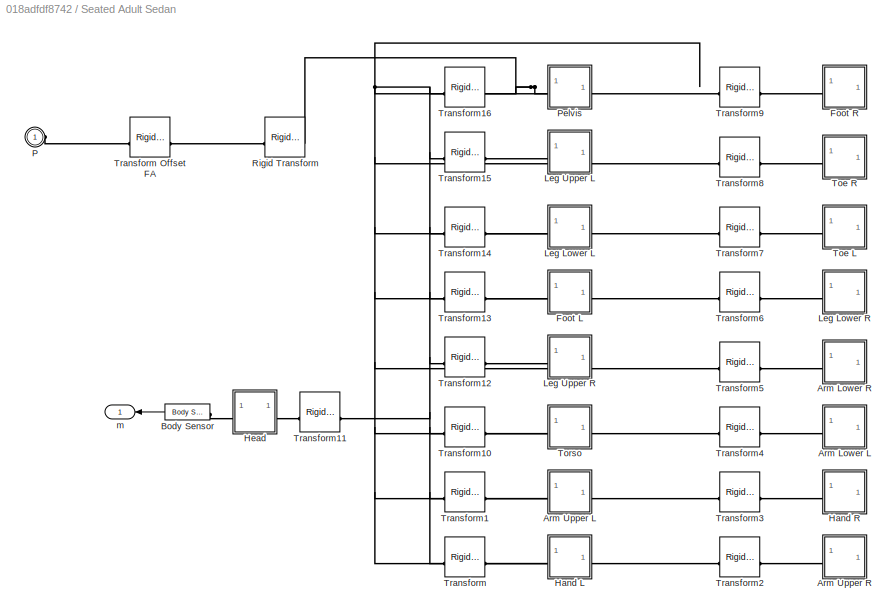
BLOCK [SubSystem] Seated Adult Sedan
  VariantControl = Variant1
BLOCK [SubSystem] Seated Adult Sedan/Arm Lower L
BLOCK [PMIOPort] Seated Adult Sedan/Arm Lower L/F
  Side = Left
BLOCK [Reference] Seated Adult Sedan/Arm Lower L/ReferenceFrame  REF=sm_lib/Frames and
Transforms/Reference
Frame
  SourceBlock = sm_lib/Frames and\nTransforms/Reference\nFrame
  SourceType = Reference\nFrame
BLOCK [Reference] Seated Adult Sedan/Arm Lower L/Solid  REF=sm_lib/Body Elements/File Solid
  SourceBlock = sm_lib/Body Elements/File Solid
  SourceType = File Solid
BLOCK [SubSystem] Seated Adult Sedan/Arm Lower R
BLOCK [PMIOPort] Seated Adult Sedan/Arm Lower R/F
  Side = Left
BLOCK [Reference] Seated Adult Sedan/Arm Lower R/ReferenceFrame  REF=sm_lib/Frames and
Transforms/Reference
Frame
  SourceBlock = sm_lib/Frames and\nTransforms/Reference\nFrame
  SourceType = Reference\nFrame
BLOCK [Reference] Seated Adult Sedan/Arm Lower R/Solid  REF=sm_lib/Body Elements/File Solid
  SourceBlock = sm_lib/Body Elements/File Solid
  SourceType = File Solid
BLOCK [SubSystem] Seated Adult Sedan/Arm Upper L
BLOCK [PMIOPort] Seated Adult Sedan/Arm Upper L/F
  Side = Left
BLOCK [Reference] Seated Adult Sedan/Arm Upper L/ReferenceFrame  REF=sm_lib/Frames and
Transforms/Reference
Frame
  SourceBlock = sm_lib/Frames and\nTransforms/Reference\nFrame
  SourceType = Reference\nFrame
BLOCK [Reference] Seated Adult Sedan/Arm Upper L/Solid  REF=sm_lib/Body Elements/File Solid
  SourceBlock = sm_lib/Body Elements/File Solid
  SourceType = File Solid
BLOCK [SubSystem] Seated Adult Sedan/Arm Upper R
BLOCK [PMIOPort] Seated Adult Sedan/Arm Upper R/F
  Side = Left
BLOCK [Reference] Seated Adult Sedan/Arm Upper R/ReferenceFrame  REF=sm_lib/Frames and
Transforms/Reference
Frame
  SourceBlock = sm_lib/Frames and\nTransforms/Reference\nFrame
  SourceType = Reference\nFrame
BLOCK [Reference] Seated Adult Sedan/Arm Upper R/Solid  REF=sm_lib/Body Elements/File Solid
  SourceBlock = sm_lib/Body Elements/File Solid
  SourceType = File Solid
BLOCK [Reference] Seated Adult Sedan/Body Sensor  REF=sm_car_lib/Sensors/Body Sensor  (lib defined in slx_05426f0848b6, slx_5dc2867fb1c9)
  SourceBlock = sm_car_lib/Sensors/Body Sensor
BLOCK [SubSystem] Seated Adult Sedan/Foot L
BLOCK [PMIOPort] Seated Adult Sedan/Foot L/F
  Side = Left
BLOCK [Reference] Seated Adult Sedan/Foot L/ReferenceFrame  REF=sm_lib/Frames and
Transforms/Reference
Frame
  SourceBlock = sm_lib/Frames and\nTransforms/Reference\nFrame
  SourceType = Reference\nFrame
BLOCK [Reference] Seated Adult Sedan/Foot L/Solid  REF=sm_lib/Body Elements/File Solid
  SourceBlock = sm_lib/Body Elements/File Solid
  SourceType = File Solid
BLOCK [SubSystem] Seated Adult Sedan/Foot R
BLOCK [PMIOPort] Seated Adult Sedan/Foot R/F
  Side = Left
BLOCK [Reference] Seated Adult Sedan/Foot R/ReferenceFrame  REF=sm_lib/Frames and
Transforms/Reference
Frame
  SourceBlock = sm_lib/Frames and\nTransforms/Reference\nFrame
  SourceType = Reference\nFrame
BLOCK [Reference] Seated Adult Sedan/Foot R/Solid  REF=sm_lib/Body Elements/File Solid
  SourceBlock = sm_lib/Body Elements/File Solid
  SourceType = File Solid
BLOCK [SubSystem] Seated Adult Sedan/Hand L
BLOCK [PMIOPort] Seated Adult Sedan/Hand L/F
  Side = Left
BLOCK [Reference] Seated Adult Sedan/Hand L/ReferenceFrame  REF=sm_lib/Frames and
Transforms/Reference
Frame
  SourceBlock = sm_lib/Frames and\nTransforms/Reference\nFrame
  SourceType = Reference\nFrame
BLOCK [Reference] Seated Adult Sedan/Hand L/Solid  REF=sm_lib/Body Elements/File Solid
  SourceBlock = sm_lib/Body Elements/File Solid
  SourceType = File Solid
BLOCK [SubSystem] Seated Adult Sedan/Hand R
BLOCK [PMIOPort] Seated Adult Sedan/Hand R/F
  Side = Left
BLOCK [Reference] Seated Adult Sedan/Hand R/ReferenceFrame  REF=sm_lib/Frames and
Transforms/Reference
Frame
  SourceBlock = sm_lib/Frames and\nTransforms/Reference\nFrame
  SourceType = Reference\nFrame
BLOCK [Reference] Seated Adult Sedan/Hand R/Solid  REF=sm_lib/Body Elements/File Solid
  SourceBlock = sm_lib/Body Elements/File Solid
  SourceType = File Solid
BLOCK [SubSystem] Seated Adult Sedan/Head
BLOCK [PMIOPort] Seated Adult Sedan/Head/C
  Port = 2
  Side = Right
BLOCK [PMIOPort] Seated Adult Sedan/Head/F
  Side = Left
BLOCK [Reference] Seated Adult Sedan/Head/ReferenceFrame  REF=sm_lib/Frames and
Transforms/Reference
Frame
  SourceBlock = sm_lib/Frames and\nTransforms/Reference\nFrame
  SourceType = Reference\nFrame
BLOCK [Reference] Seated Adult Sedan/Head/Solid  REF=sm_lib/Body Elements/File Solid
  SourceBlock = sm_lib/Body Elements/File Solid
  SourceType = File Solid
BLOCK [Reference] Seated Adult Sedan/Head/Transform Head Center  REF=sm_lib/Frames and
Transforms/Rigid
Transform
  SourceBlock = sm_lib/Frames and\nTransforms/Rigid\nTransform
  SourceType = Rigid\nTransform
BLOCK [SubSystem] Seated Adult Sedan/Leg Lower L
BLOCK [PMIOPort] Seated Adult Sedan/Leg Lower L/F
  Side = Left
BLOCK [Reference] Seated Adult Sedan/Leg Lower L/ReferenceFrame  REF=sm_lib/Frames and
Transforms/Reference
Frame
  SourceBlock = sm_lib/Frames and\nTransforms/Reference\nFrame
  SourceType = Reference\nFrame
BLOCK [Reference] Seated Adult Sedan/Leg Lower L/Solid  REF=sm_lib/Body Elements/File Solid
  SourceBlock = sm_lib/Body Elements/File Solid
  SourceType = File Solid
BLOCK [SubSystem] Seated Adult Sedan/Leg Lower R
BLOCK [PMIOPort] Seated Adult Sedan/Leg Lower R/F
  Side = Left
BLOCK [Reference] Seated Adult Sedan/Leg Lower R/ReferenceFrame  REF=sm_lib/Frames and
Transforms/Reference
Frame
  SourceBlock = sm_lib/Frames and\nTransforms/Reference\nFrame
  SourceType = Reference\nFrame
BLOCK [Reference] Seated Adult Sedan/Leg Lower R/Solid  REF=sm_lib/Body Elements/File Solid
  SourceBlock = sm_lib/Body Elements/File Solid
  SourceType = File Solid
BLOCK [SubSystem] Seated Adult Sedan/Leg Upper L
BLOCK [PMIOPort] Seated Adult Sedan/Leg Upper L/F
  Side = Left
BLOCK [Reference] Seated Adult Sedan/Leg Upper L/ReferenceFrame  REF=sm_lib/Frames and
Transforms/Reference
Frame
  SourceBlock = sm_lib/Frames and\nTransforms/Reference\nFrame
  SourceType = Reference\nFrame
BLOCK [Reference] Seated Adult Sedan/Leg Upper L/Solid  REF=sm_lib/Body Elements/File Solid
  SourceBlock = sm_lib/Body Elements/File Solid
  SourceType = File Solid
BLOCK [SubSystem] Seated Adult Sedan/Leg Upper R
BLOCK [PMIOPort] Seated Adult Sedan/Leg Upper R/F
  Side = Left
BLOCK [Reference] Seated Adult Sedan/Leg Upper R/ReferenceFrame  REF=sm_lib/Frames and
Transforms/Reference
Frame
  SourceBlock = sm_lib/Frames and\nTransforms/Reference\nFrame
  SourceType = Reference\nFrame
BLOCK [Reference] Seated Adult Sedan/Leg Upper R/Solid  REF=sm_lib/Body Elements/File Solid
  SourceBlock = sm_lib/Body Elements/File Solid
  SourceType = File Solid
BLOCK [PMIOPort] Seated Adult Sedan/P
  Side = Left
BLOCK [SubSystem] Seated Adult Sedan/Pelvis
BLOCK [PMIOPort] Seated Adult Sedan/Pelvis/F
  Side = Left
BLOCK [Reference] Seated Adult Sedan/Pelvis/ReferenceFrame  REF=sm_lib/Frames and
Transforms/Reference
Frame
  SourceBlock = sm_lib/Frames and\nTransforms/Reference\nFrame
  SourceType = Reference\nFrame
BLOCK [Reference] Seated Adult Sedan/Pelvis/Solid  REF=sm_lib/Body Elements/File Solid
  SourceBlock = sm_lib/Body Elements/File Solid
  SourceType = File Solid
BLOCK [Reference] Seated Adult Sedan/Rigid Transform  REF=sm_lib/Frames and
Transforms/Rigid
Transform
  SourceBlock = sm_lib/Frames and\nTransforms/Rigid\nTransform
  SourceType = Rigid\nTransform
BLOCK [SubSystem] Seated Adult Sedan/Toe L
BLOCK [PMIOPort] Seated Adult Sedan/Toe L/F
  Side = Left
BLOCK [Reference] Seated Adult Sedan/Toe L/ReferenceFrame  REF=sm_lib/Frames and
Transforms/Reference
Frame
  SourceBlock = sm_lib/Frames and\nTransforms/Reference\nFrame
  SourceType = Reference\nFrame
BLOCK [Reference] Seated Adult Sedan/Toe L/Solid  REF=sm_lib/Body Elements/File Solid
  SourceBlock = sm_lib/Body Elements/File Solid
  SourceType = File Solid
BLOCK [SubSystem] Seated Adult Sedan/Toe R
BLOCK [PMIOPort] Seated Adult Sedan/Toe R/F
  Side = Left
BLOCK [Reference] Seated Adult Sedan/Toe R/ReferenceFrame  REF=sm_lib/Frames and
Transforms/Reference
Frame
  SourceBlock = sm_lib/Frames and\nTransforms/Reference\nFrame
  SourceType = Reference\nFrame
BLOCK [Reference] Seated Adult Sedan/Toe R/Solid  REF=sm_lib/Body Elements/File Solid
  SourceBlock = sm_lib/Body Elements/File Solid
  SourceType = File Solid
BLOCK [SubSystem] Seated Adult Sedan/Torso
BLOCK [PMIOPort] Seated Adult Sedan/Torso/F
  Side = Left
BLOCK [Reference] Seated Adult Sedan/Torso/ReferenceFrame  REF=sm_lib/Frames and
Transforms/Reference
Frame
  SourceBlock = sm_lib/Frames and\nTransforms/Reference\nFrame
  SourceType = Reference\nFrame
BLOCK [Reference] Seated Adult Sedan/Torso/Solid  REF=sm_lib/Body Elements/File Solid
  SourceBlock = sm_lib/Body Elements/File Solid
  SourceType = File Solid
BLOCK [Reference] Seated Adult Sedan/Transform  REF=sm_lib/Frames and
Transforms/Rigid
Transform
  SourceBlock = sm_lib/Frames and\nTransforms/Rigid\nTransform
  SourceType = Rigid\nTransform
BLOCK [Reference] Seated Adult Sedan/Transform Offset FA  REF=sm_lib/Frames and
Transforms/Rigid
Transform
  SourceBlock = sm_lib/Frames and\nTransforms/Rigid\nTransform
  SourceType = Rigid\nTransform
BLOCK [Reference] Seated Adult Sedan/Transform1  REF=sm_lib/Frames and
Transforms/Rigid
Transform
  SourceBlock = sm_lib/Frames and\nTransforms/Rigid\nTransform
  SourceType = Rigid\nTransform
BLOCK [Reference] Seated Adult Sedan/Transform10  REF=sm_lib/Frames and
Transforms/Rigid
Transform
  SourceBlock = sm_lib/Frames and\nTransforms/Rigid\nTransform
  SourceType = Rigid\nTransform
BLOCK [Reference] Seated Adult Sedan/Transform11  REF=sm_lib/Frames and
Transforms/Rigid
Transform
  SourceBlock = sm_lib/Frames and\nTransforms/Rigid\nTransform
  SourceType = Rigid\nTransform
BLOCK [Reference] Seated Adult Sedan/Transform12  REF=sm_lib/Frames and
Transforms/Rigid
Transform
  SourceBlock = sm_lib/Frames and\nTransforms/Rigid\nTransform
  SourceType = Rigid\nTransform
BLOCK [Reference] Seated Adult Sedan/Transform13  REF=sm_lib/Frames and
Transforms/Rigid
Transform
  SourceBlock = sm_lib/Frames and\nTransforms/Rigid\nTransform
  SourceType = Rigid\nTransform
BLOCK [Reference] Seated Adult Sedan/Transform14  REF=sm_lib/Frames and
Transforms/Rigid
Transform
  SourceBlock = sm_lib/Frames and\nTransforms/Rigid\nTransform
  SourceType = Rigid\nTransform
BLOCK [Reference] Seated Adult Sedan/Transform15  REF=sm_lib/Frames and
Transforms/Rigid
Transform
  SourceBlock = sm_lib/Frames and\nTransforms/Rigid\nTransform
  SourceType = Rigid\nTransform
BLOCK [Reference] Seated Adult Sedan/Transform16  REF=sm_lib/Frames and
Transforms/Rigid
Transform
  SourceBlock = sm_lib/Frames and\nTransforms/Rigid\nTransform
  SourceType = Rigid\nTransform
BLOCK [Reference] Seated Adult Sedan/Transform2  REF=sm_lib/Frames and
Transforms/Rigid
Transform
  SourceBlock = sm_lib/Frames and\nTransforms/Rigid\nTransform
  SourceType = Rigid\nTransform
BLOCK [Reference] Seated Adult Sedan/Transform3  REF=sm_lib/Frames and
Transforms/Rigid
Transform
  SourceBlock = sm_lib/Frames and\nTransforms/Rigid\nTransform
  SourceType = Rigid\nTransform
BLOCK [Reference] Seated Adult Sedan/Transform4  REF=sm_lib/Frames and
Transforms/Rigid
Transform
  SourceBlock = sm_lib/Frames and\nTransforms/Rigid\nTransform
  SourceType = Rigid\nTransform
BLOCK [Reference] Seated Adult Sedan/Transform5  REF=sm_lib/Frames and
Transforms/Rigid
Transform
  SourceBlock = sm_lib/Frames and\nTransforms/Rigid\nTransform
  SourceType = Rigid\nTransform
BLOCK [Reference] Seated Adult Sedan/Transform6  REF=sm_lib/Frames and
Transforms/Rigid
Transform
  SourceBlock = sm_lib/Frames and\nTransforms/Rigid\nTransform
  SourceType = Rigid\nTransform
BLOCK [Reference] Seated Adult Sedan/Transform7  REF=sm_lib/Frames and
Transforms/Rigid
Transform
  SourceBlock = sm_lib/Frames and\nTransforms/Rigid\nTransform
  SourceType = Rigid\nTransform
BLOCK [Reference] Seated Adult Sedan/Transform8  REF=sm_lib/Frames and
Transforms/Rigid
Transform
  SourceBlock = sm_lib/Frames and\nTransforms/Rigid\nTransform
  SourceType = Rigid\nTransform
BLOCK [Reference] Seated Adult Sedan/Transform9  REF=sm_lib/Frames and
Transforms/Rigid
Transform
  SourceBlock = sm_lib/Frames and\nTransforms/Rigid\nTransform
  SourceType = Rigid\nTransform
BLOCK [Outport] Seated Adult Sedan/m
  VectorParamsAs1DForOutWhenUnconnected = off
LINE Driver Human Seated/Body Sensor:1 -> Driver Human Seated/m:1
LINE Driver Human Seated/Gain:1 -> Driver Human Seated/Simulink-PS Converter:1
LINE Driver Human Seated/q:1 -> Driver Human Seated/Gain:1
LINE Seated Adult Sedan/Body Sensor:1 -> Seated Adult Sedan/m:1
PLINE Driver Human Seated/Arm L/Arm Lower L/Elbow:RConn1 -- Driver Human Seated/Arm L/Arm Lower L/Transform Elbow:RConn1
PNET net1: Driver Human Seated/Arm L/Arm Lower L/ReferenceFrame:RConn1 -- Driver Human Seated/Arm L/Arm Lower L/Solid:RConn1 -- Driver Human Seated/Arm L/Arm Lower L/Transform1:LConn1 -- Driver Human Seated/Arm L/Arm Lower L/Transform:LConn1
PLINE Driver Human Seated/Arm L/Arm Lower L/Transform Elbow:LConn1 -- Driver Human Seated/Arm L/Arm Lower L/Transform:RConn1
PLINE Driver Human Seated/Arm L/Arm Lower L/Transform Transform Wrist:LConn1 -- Driver Human Seated/Arm L/Arm Lower L/Transform1:RConn1
PLINE Driver Human Seated/Arm L/Arm Lower L/Transform Transform Wrist:RConn1 -- Driver Human Seated/Arm L/Arm Lower L/Wrist:RConn1
PLINE Driver Human Seated/Arm L/Arm Lower L:LConn1 -- Driver Human Seated/Arm L/Revolute ElbowL:RConn1
PLINE Driver Human Seated/Arm L/Arm Lower L:RConn1 -- Driver Human Seated/Arm L/Universal WristL:LConn1
PLINE Driver Human Seated/Arm L/Arm Upper L/Elbow:RConn1 -- Driver Human Seated/Arm L/Arm Upper L/Transform Elbow:RConn1
PNET net2: Driver Human Seated/Arm L/Arm Upper L/ReferenceFrame:RConn1 -- Driver Human Seated/Arm L/Arm Upper L/Solid:RConn1 -- Driver Human Seated/Arm L/Arm Upper L/Transform1:LConn1 -- Driver Human Seated/Arm L/Arm Upper L/Transform:LConn1
PLINE Driver Human Seated/Arm L/Arm Upper L/Shoulder:RConn1 -- Driver Human Seated/Arm L/Arm Upper L/Transform Shoulder:RConn1
PLINE Driver Human Seated/Arm L/Arm Upper L/Transform Elbow:LConn1 -- Driver Human Seated/Arm L/Arm Upper L/Transform1:RConn1
PLINE Driver Human Seated/Arm L/Arm Upper L/Transform Shoulder:LConn1 -- Driver Human Seated/Arm L/Arm Upper L/Transform:RConn1
PLINE Driver Human Seated/Arm L/Arm Upper L:LConn1 -- Driver Human Seated/Arm L/Spherical ShoulderL:RConn1
PLINE Driver Human Seated/Arm L/Arm Upper L:RConn1 -- Driver Human Seated/Arm L/Revolute ElbowL:LConn1
PLINE Driver Human Seated/Arm L/Grip:RConn1 -- Driver Human Seated/Arm L/Hand L:RConn1
PLINE Driver Human Seated/Arm L/Hand L/Grip:RConn1 -- Driver Human Seated/Arm L/Hand L/Transform1:RConn1
PNET net3: Driver Human Seated/Arm L/Hand L/ReferenceFrame:RConn1 -- Driver Human Seated/Arm L/Hand L/Solid:RConn1 -- Driver Human Seated/Arm L/Hand L/Transform1:LConn1 -- Driver Human Seated/Arm L/Hand L/Transform:LConn1
PLINE Driver Human Seated/Arm L/Hand L/Transform Wrist:LConn1 -- Driver Human Seated/Arm L/Hand L/Transform:RConn1
PLINE Driver Human Seated/Arm L/Hand L/Transform Wrist:RConn1 -- Driver Human Seated/Arm L/Hand L/Wrist:RConn1
PLINE Driver Human Seated/Arm L/Hand L:LConn1 -- Driver Human Seated/Arm L/Universal WristL:RConn1
PLINE Driver Human Seated/Arm L/Sh:RConn1 -- Driver Human Seated/Arm L/Spherical ShoulderL:LConn1
PLINE Driver Human Seated/Arm L:LConn1 -- Driver Human Seated/Torso:RConn1
PLINE Driver Human Seated/Arm L:RConn1 -- Driver Human Seated/HandL:RConn1
PLINE Driver Human Seated/Arm R/Arm Lower R/Elbow:RConn1 -- Driver Human Seated/Arm R/Arm Lower R/Transform Elbow:RConn1
PNET net4: Driver Human Seated/Arm R/Arm Lower R/ReferenceFrame:RConn1 -- Driver Human Seated/Arm R/Arm Lower R/Solid:RConn1 -- Driver Human Seated/Arm R/Arm Lower R/Transform1:LConn1 -- Driver Human Seated/Arm R/Arm Lower R/Transform:LConn1
PLINE Driver Human Seated/Arm R/Arm Lower R/Transform Elbow:LConn1 -- Driver Human Seated/Arm R/Arm Lower R/Transform1:RConn1
PLINE Driver Human Seated/Arm R/Arm Lower R/Transform Wrist:LConn1 -- Driver Human Seated/Arm R/Arm Lower R/Transform:RConn1
PLINE Driver Human Seated/Arm R/Arm Lower R/Transform Wrist:RConn1 -- Driver Human Seated/Arm R/Arm Lower R/Wrist:RConn1
PLINE Driver Human Seated/Arm R/Arm Lower R:LConn1 -- Driver Human Seated/Arm R/Revolute ElbowR:RConn1
PLINE Driver Human Seated/Arm R/Arm Lower R:RConn1 -- Driver Human Seated/Arm R/Universal WristR:LConn1
PLINE Driver Human Seated/Arm R/Arm Upper R/Elbow:RConn1 -- Driver Human Seated/Arm R/Arm Upper R/Transform Elbow:RConn1
PNET net5: Driver Human Seated/Arm R/Arm Upper R/ReferenceFrame:RConn1 -- Driver Human Seated/Arm R/Arm Upper R/Solid:RConn1 -- Driver Human Seated/Arm R/Arm Upper R/Transform1:LConn1 -- Driver Human Seated/Arm R/Arm Upper R/Transform:LConn1
PLINE Driver Human Seated/Arm R/Arm Upper R/Shoulder:RConn1 -- Driver Human Seated/Arm R/Arm Upper R/Transform Shoulder:RConn1
PLINE Driver Human Seated/Arm R/Arm Upper R/Transform Elbow:LConn1 -- Driver Human Seated/Arm R/Arm Upper R/Transform:RConn1
PLINE Driver Human Seated/Arm R/Arm Upper R/Transform Shoulder:LConn1 -- Driver Human Seated/Arm R/Arm Upper R/Transform1:RConn1
PLINE Driver Human Seated/Arm R/Arm Upper R:LConn1 -- Driver Human Seated/Arm R/Spherical ShoulderR:RConn1
PLINE Driver Human Seated/Arm R/Arm Upper R:RConn1 -- Driver Human Seated/Arm R/Revolute ElbowR:LConn1
PLINE Driver Human Seated/Arm R/Grip:RConn1 -- Driver Human Seated/Arm R/Hand R:RConn1
PLINE Driver Human Seated/Arm R/Hand R/Grip:RConn1 -- Driver Human Seated/Arm R/Hand R/Transform Grip:RConn1
PNET net6: Driver Human Seated/Arm R/Hand R/ReferenceFrame:RConn1 -- Driver Human Seated/Arm R/Hand R/Solid:RConn1 -- Driver Human Seated/Arm R/Hand R/Transform1:LConn1 -- Driver Human Seated/Arm R/Hand R/Transform:LConn1
PLINE Driver Human Seated/Arm R/Hand R/Transform Grip:LConn1 -- Driver Human Seated/Arm R/Hand R/Transform1:RConn1
PLINE Driver Human Seated/Arm R/Hand R/Transform Wrist:LConn1 -- Driver Human Seated/Arm R/Hand R/Transform:RConn1
PLINE Driver Human Seated/Arm R/Hand R/Transform Wrist:RConn1 -- Driver Human Seated/Arm R/Hand R/Wrist:RConn1
PLINE Driver Human Seated/Arm R/Hand R:LConn1 -- Driver Human Seated/Arm R/Universal WristR:RConn1
PLINE Driver Human Seated/Arm R/Sh:RConn1 -- Driver Human Seated/Arm R/Spherical ShoulderR:LConn1
PLINE Driver Human Seated/Arm R:LConn1 -- Driver Human Seated/Torso:RConn3
PLINE Driver Human Seated/Arm R:RConn1 -- Driver Human Seated/HandR:RConn1
PLINE Driver Human Seated/Body Sensor:LConn1 -- Driver Human Seated/Head:RConn1
PLINE Driver Human Seated/Head/C:RConn1 -- Driver Human Seated/Head/Transform Head Center:RConn1
PLINE Driver Human Seated/Head/F:RConn1 -- Driver Human Seated/Head/Transform Neck:RConn1
PNET net7: Driver Human Seated/Head/ReferenceFrame:RConn1 -- Driver Human Seated/Head/Solid:RConn1 -- Driver Human Seated/Head/Transform Head Center:LConn1 -- Driver Human Seated/Head/Transform:LConn1
PLINE Driver Human Seated/Head/Transform Neck:LConn1 -- Driver Human Seated/Head/Transform:RConn1
PLINE Driver Human Seated/Head:LConn1 -- Driver Human Seated/Revolute Neck:RConn1
PLINE Driver Human Seated/Leg L/Foot L/F1:RConn1 -- Driver Human Seated/Leg L/Foot L/Transform1:RConn1
PLINE Driver Human Seated/Leg L/Foot L/F:RConn1 -- Driver Human Seated/Leg L/Foot L/Transform:RConn1
PNET net8: Driver Human Seated/Leg L/Foot L/ReferenceFrame:RConn1 -- Driver Human Seated/Leg L/Foot L/Solid:RConn1 -- Driver Human Seated/Leg L/Foot L/Transform1:LConn1 -- Driver Human Seated/Leg L/Foot L/Transform:LConn1
PLINE Driver Human Seated/Leg L/Foot L:LConn1 -- Driver Human Seated/Leg L/Toe L:LConn1
PLINE Driver Human Seated/Leg L/Foot L:LConn2 -- Driver Human Seated/Leg L/Leg Lower L:LConn1
PLINE Driver Human Seated/Leg L/Leg Lower L/F1:RConn1 -- Driver Human Seated/Leg L/Leg Lower L/Transform1:RConn1
PLINE Driver Human Seated/Leg L/Leg Lower L/F:RConn1 -- Driver Human Seated/Leg L/Leg Lower L/Transform:RConn1
PNET net9: Driver Human Seated/Leg L/Leg Lower L/ReferenceFrame:RConn1 -- Driver Human Seated/Leg L/Leg Lower L/Solid:RConn1 -- Driver Human Seated/Leg L/Leg Lower L/Transform1:LConn1 -- Driver Human Seated/Leg L/Leg Lower L/Transform:LConn1
PLINE Driver Human Seated/Leg L/Leg Lower L:LConn2 -- Driver Human Seated/Leg L/Leg Upper L:LConn2
PLINE Driver Human Seated/Leg L/Leg Upper L/F1:RConn1 -- Driver Human Seated/Leg L/Leg Upper L/Transform1:RConn1
PLINE Driver Human Seated/Leg L/Leg Upper L/F:RConn1 -- Driver Human Seated/Leg L/Leg Upper L/Transform:RConn1
PNET net10: Driver Human Seated/Leg L/Leg Upper L/ReferenceFrame:RConn1 -- Driver Human Seated/Leg L/Leg Upper L/Solid:RConn1 -- Driver Human Seated/Leg L/Leg Upper L/Transform1:LConn1 -- Driver Human Seated/Leg L/Leg Upper L/Transform:LConn1
PLINE Driver Human Seated/Leg L/Leg Upper L:LConn1 -- Driver Human Seated/Leg L/P:RConn1
PLINE Driver Human Seated/Leg L/Toe L/F:RConn1 -- Driver Human Seated/Leg L/Toe L/Transform:RConn1
PNET net11: Driver Human Seated/Leg L/Toe L/ReferenceFrame:RConn1 -- Driver Human Seated/Leg L/Toe L/Solid:RConn1 -- Driver Human Seated/Leg L/Toe L/Transform:LConn1
PLINE Driver Human Seated/Leg L:LConn1 -- Driver Human Seated/Pelvis:RConn1
PLINE Driver Human Seated/Leg R/Foot R/F1:RConn1 -- Driver Human Seated/Leg R/Foot R/Transform1:RConn1
PLINE Driver Human Seated/Leg R/Foot R/F:RConn1 -- Driver Human Seated/Leg R/Foot R/Transform:RConn1
PNET net12: Driver Human Seated/Leg R/Foot R/ReferenceFrame:RConn1 -- Driver Human Seated/Leg R/Foot R/Solid:RConn1 -- Driver Human Seated/Leg R/Foot R/Transform1:LConn1 -- Driver Human Seated/Leg R/Foot R/Transform:LConn1
PLINE Driver Human Seated/Leg R/Foot R:LConn1 -- Driver Human Seated/Leg R/Toe R:LConn1
PLINE Driver Human Seated/Leg R/Foot R:LConn2 -- Driver Human Seated/Leg R/Leg Lower R:LConn1
PLINE Driver Human Seated/Leg R/Leg Lower R/F1:RConn1 -- Driver Human Seated/Leg R/Leg Lower R/Transform1:RConn1
PLINE Driver Human Seated/Leg R/Leg Lower R/F:RConn1 -- Driver Human Seated/Leg R/Leg Lower R/Transform:RConn1
PNET net13: Driver Human Seated/Leg R/Leg Lower R/ReferenceFrame:RConn1 -- Driver Human Seated/Leg R/Leg Lower R/Solid:RConn1 -- Driver Human Seated/Leg R/Leg Lower R/Transform1:LConn1 -- Driver Human Seated/Leg R/Leg Lower R/Transform:LConn1
PLINE Driver Human Seated/Leg R/Leg Lower R:LConn2 -- Driver Human Seated/Leg R/Leg Upper R:LConn1
PLINE Driver Human Seated/Leg R/Leg Upper R/F1:RConn1 -- Driver Human Seated/Leg R/Leg Upper R/Transform1:RConn1
PLINE Driver Human Seated/Leg R/Leg Upper R/F:RConn1 -- Driver Human Seated/Leg R/Leg Upper R/Transform:RConn1
PNET net14: Driver Human Seated/Leg R/Leg Upper R/ReferenceFrame:RConn1 -- Driver Human Seated/Leg R/Leg Upper R/Solid:RConn1 -- Driver Human Seated/Leg R/Leg Upper R/Transform1:LConn1 -- Driver Human Seated/Leg R/Leg Upper R/Transform:LConn1
PLINE Driver Human Seated/Leg R/Leg Upper R:LConn2 -- Driver Human Seated/Leg R/P:RConn1
PLINE Driver Human Seated/Leg R/Toe R/F:RConn1 -- Driver Human Seated/Leg R/Toe R/Transform:RConn1
PNET net15: Driver Human Seated/Leg R/Toe R/ReferenceFrame:RConn1 -- Driver Human Seated/Leg R/Toe R/Solid:RConn1 -- Driver Human Seated/Leg R/Toe R/Transform:LConn1
PLINE Driver Human Seated/Leg R:LConn1 -- Driver Human Seated/Pelvis:RConn2
PLINE Driver Human Seated/Pelvis/LegL:RConn1 -- Driver Human Seated/Pelvis/Transform3:RConn1
PLINE Driver Human Seated/Pelvis/LegR:RConn1 -- Driver Human Seated/Pelvis/Transform:RConn1
PNET net16: Driver Human Seated/Pelvis/ReferenceFrame:RConn1 -- Driver Human Seated/Pelvis/Solid:RConn1 -- Driver Human Seated/Pelvis/Transform2:LConn1 -- Driver Human Seated/Pelvis/Transform3:LConn1 -- Driver Human Seated/Pelvis/Transform:LConn1
PLINE Driver Human Seated/Pelvis/Torso:RConn1 -- Driver Human Seated/Pelvis/Transform2:RConn1
PNET net17: Driver Human Seated/Pelvis:LConn1 -- Driver Human Seated/Transform Seat Angle:LConn1 -- Driver Human Seated/Twist:LConn1
PLINE Driver Human Seated/Ref:RConn1 -- Driver Human Seated/Transform FA to Driver:LConn1
PLINE Driver Human Seated/Revolute Neck:LConn1 -- Driver Human Seated/Torso:RConn2
PLINE Driver Human Seated/Revolute Neck:LConn2 -- Driver Human Seated/Simulink-PS Converter:RConn1
PLINE Driver Human Seated/Torso/ArmL:RConn1 -- Driver Human Seated/Torso/Transform ShoulderL:RConn1
PLINE Driver Human Seated/Torso/ArmR:RConn1 -- Driver Human Seated/Torso/Transform ShoulderR:RConn1
PLINE Driver Human Seated/Torso/Head:RConn1 -- Driver Human Seated/Torso/Transform Neck:RConn1
PLINE Driver Human Seated/Torso/Pelvis:RConn1 -- Driver Human Seated/Torso/Transform1:RConn1
PNET net18: Driver Human Seated/Torso/ReferenceFrame:RConn1 -- Driver Human Seated/Torso/Solid:RConn1 -- Driver Human Seated/Torso/Transform1:LConn1 -- Driver Human Seated/Torso/Transform2:LConn1 -- Driver Human Seated/Torso/Transform3:LConn1 -- Driver Human Seated/Torso/Transform:LConn1
PLINE Driver Human Seated/Torso/Transform Neck:LConn1 -- Driver Human Seated/Torso/Transform Nod:RConn1
PLINE Driver Human Seated/Torso/Transform Nod:LConn1 -- Driver Human Seated/Torso/Transform2:RConn1
PLINE Driver Human Seated/Torso/Transform ShoulderL:LConn1 -- Driver Human Seated/Torso/Transform:RConn1
PLINE Driver Human Seated/Torso/Transform ShoulderR:LConn1 -- Driver Human Seated/Torso/Transform3:RConn1
PLINE Driver Human Seated/Torso:LConn1 -- Driver Human Seated/Twist:RConn1
PLINE Driver Human Seated/Transform FA to Driver:RConn1 -- Driver Human Seated/Transform Seat Angle:RConn1
PLINE Driver Human Seated/Twist/B:RConn1 -- Driver Human Seated/Twist/Transform Axis Orientation B:LConn1
PLINE Driver Human Seated/Twist/T:RConn1 -- Driver Human Seated/Twist/Transform Axis Orientation F:LConn1
PLINE Driver Human Seated/Twist/Transform Axis Location B:LConn1 -- Driver Human Seated/Twist/Transform Axis Orientation B:RConn1
PLINE Driver Human Seated/Twist/Transform Axis Location B:RConn1 -- Driver Human Seated/Twist/Transform Universal B:LConn1
PLINE Driver Human Seated/Twist/Transform Axis Location F:LConn1 -- Driver Human Seated/Twist/Transform Axis Orientation F:RConn1
PLINE Driver Human Seated/Twist/Transform Axis Location F:RConn1 -- Driver Human Seated/Twist/Transform Universal F:LConn1
PLINE Driver Human Seated/Twist/Transform Universal B:RConn1 -- Driver Human Seated/Twist/Universal Torso:LConn1
PLINE Driver Human Seated/Twist/Transform Universal F:RConn1 -- Driver Human Seated/Twist/Universal Torso:RConn1
PNET net19: Seated Adult Sedan/Arm Lower L/F:RConn1 -- Seated Adult Sedan/Arm Lower L/ReferenceFrame:RConn1 -- Seated Adult Sedan/Arm Lower L/Solid:RConn1
PLINE Seated Adult Sedan/Arm Lower L:LConn1 -- Seated Adult Sedan/Transform4:RConn1
PNET net20: Seated Adult Sedan/Arm Lower R/F:RConn1 -- Seated Adult Sedan/Arm Lower R/ReferenceFrame:RConn1 -- Seated Adult Sedan/Arm Lower R/Solid:RConn1
PLINE Seated Adult Sedan/Arm Lower R:LConn1 -- Seated Adult Sedan/Transform5:RConn1
PNET net21: Seated Adult Sedan/Arm Upper L/F:RConn1 -- Seated Adult Sedan/Arm Upper L/ReferenceFrame:RConn1 -- Seated Adult Sedan/Arm Upper L/Solid:RConn1
PLINE Seated Adult Sedan/Arm Upper L:LConn1 -- Seated Adult Sedan/Transform1:RConn1
PNET net22: Seated Adult Sedan/Arm Upper R/F:RConn1 -- Seated Adult Sedan/Arm Upper R/ReferenceFrame:RConn1 -- Seated Adult Sedan/Arm Upper R/Solid:RConn1
PLINE Seated Adult Sedan/Arm Upper R:LConn1 -- Seated Adult Sedan/Transform2:RConn1
PLINE Seated Adult Sedan/Body Sensor:LConn1 -- Seated Adult Sedan/Head:RConn1
PNET net23: Seated Adult Sedan/Foot L/F:RConn1 -- Seated Adult Sedan/Foot L/ReferenceFrame:RConn1 -- Seated Adult Sedan/Foot L/Solid:RConn1
PLINE Seated Adult Sedan/Foot L:LConn1 -- Seated Adult Sedan/Transform13:RConn1
PNET net24: Seated Adult Sedan/Foot R/F:RConn1 -- Seated Adult Sedan/Foot R/ReferenceFrame:RConn1 -- Seated Adult Sedan/Foot R/Solid:RConn1
PLINE Seated Adult Sedan/Foot R:LConn1 -- Seated Adult Sedan/Transform9:RConn1
PNET net25: Seated Adult Sedan/Hand L/F:RConn1 -- Seated Adult Sedan/Hand L/ReferenceFrame:RConn1 -- Seated Adult Sedan/Hand L/Solid:RConn1
PLINE Seated Adult Sedan/Hand L:LConn1 -- Seated Adult Sedan/Transform:RConn1
PNET net26: Seated Adult Sedan/Hand R/F:RConn1 -- Seated Adult Sedan/Hand R/ReferenceFrame:RConn1 -- Seated Adult Sedan/Hand R/Solid:RConn1
PLINE Seated Adult Sedan/Hand R:LConn1 -- Seated Adult Sedan/Transform3:RConn1
PLINE Seated Adult Sedan/Head/C:RConn1 -- Seated Adult Sedan/Head/Transform Head Center:RConn1
PNET net27: Seated Adult Sedan/Head/F:RConn1 -- Seated Adult Sedan/Head/ReferenceFrame:RConn1 -- Seated Adult Sedan/Head/Solid:RConn1 -- Seated Adult Sedan/Head/Transform Head Center:LConn1
PLINE Seated Adult Sedan/Head:LConn1 -- Seated Adult Sedan/Transform11:RConn1
PNET net28: Seated Adult Sedan/Leg Lower L/F:RConn1 -- Seated Adult Sedan/Leg Lower L/ReferenceFrame:RConn1 -- Seated Adult Sedan/Leg Lower L/Solid:RConn1
PLINE Seated Adult Sedan/Leg Lower L:LConn1 -- Seated Adult Sedan/Transform14:RConn1
PNET net29: Seated Adult Sedan/Leg Lower R/F:RConn1 -- Seated Adult Sedan/Leg Lower R/ReferenceFrame:RConn1 -- Seated Adult Sedan/Leg Lower R/Solid:RConn1
PLINE Seated Adult Sedan/Leg Lower R:LConn1 -- Seated Adult Sedan/Transform6:RConn1
PNET net30: Seated Adult Sedan/Leg Upper L/F:RConn1 -- Seated Adult Sedan/Leg Upper L/ReferenceFrame:RConn1 -- Seated Adult Sedan/Leg Upper L/Solid:RConn1
PLINE Seated Adult Sedan/Leg Upper L:LConn1 -- Seated Adult Sedan/Transform15:RConn1
PNET net31: Seated Adult Sedan/Leg Upper R/F:RConn1 -- Seated Adult Sedan/Leg Upper R/ReferenceFrame:RConn1 -- Seated Adult Sedan/Leg Upper R/Solid:RConn1
PLINE Seated Adult Sedan/Leg Upper R:LConn1 -- Seated Adult Sedan/Transform12:RConn1
PLINE Seated Adult Sedan/P:RConn1 -- Seated Adult Sedan/Transform Offset FA:LConn1
PNET net32: Seated Adult Sedan/Pelvis/F:RConn1 -- Seated Adult Sedan/Pelvis/ReferenceFrame:RConn1 -- Seated Adult Sedan/Pelvis/Solid:RConn1
PNET net33: Seated Adult Sedan/Pelvis:LConn1 -- Seated Adult Sedan/Rigid Transform:LConn1 -- Seated Adult Sedan/Transform16:RConn1
PLINE Seated Adult Sedan/Rigid Transform:RConn1 -- Seated Adult Sedan/Transform Offset FA:RConn1
PNET net34: Seated Adult Sedan/Toe L/F:RConn1 -- Seated Adult Sedan/Toe L/ReferenceFrame:RConn1 -- Seated Adult Sedan/Toe L/Solid:RConn1
PLINE Seated Adult Sedan/Toe L:LConn1 -- Seated Adult Sedan/Transform7:RConn1
PNET net35: Seated Adult Sedan/Toe R/F:RConn1 -- Seated Adult Sedan/Toe R/ReferenceFrame:RConn1 -- Seated Adult Sedan/Toe R/Solid:RConn1
PLINE Seated Adult Sedan/Toe R:LConn1 -- Seated Adult Sedan/Transform8:RConn1
PNET net36: Seated Adult Sedan/Torso/F:RConn1 -- Seated Adult Sedan/Torso/ReferenceFrame:RConn1 -- Seated Adult Sedan/Torso/Solid:RConn1
PLINE Seated Adult Sedan/Torso:LConn1 -- Seated Adult Sedan/Transform10:RConn1
PNET net37: Seated Adult Sedan/Transform10:LConn1 -- Seated Adult Sedan/Transform11:LConn1 -- Seated Adult Sedan/Transform12:LConn1 -- Seated Adult Sedan/Transform13:LConn1 -- Seated Adult Sedan/Transform14:LConn1 -- Seated Adult Sedan/Transform15:LConn1 -- Seated Adult Sedan/Transform16:LConn1 -- Seated Adult Sedan/Transform1:LConn1 -- Seated Adult Sedan/Transform2:LConn1 -- Seated Adult Sedan/Transform3:LConn1 -- Seated Adult Sedan/Transform4:LConn1 -- Seated Adult Sedan/Transform5:LConn1 -- Seated Adult Sedan/Transform6:LConn1 -- Seated Adult Sedan/Transform7:LConn1 -- Seated Adult Sedan/Transform8:LConn1 -- Seated Adult Sedan/Transform9:LConn1 -- Seated Adult Sedan/Transform:LConn1
note: PNET lines group multi-terminal physical nets as a canonical sorted terminal list (undirected conserving connections); 2-terminal nets keep the pairwise PLINE form
